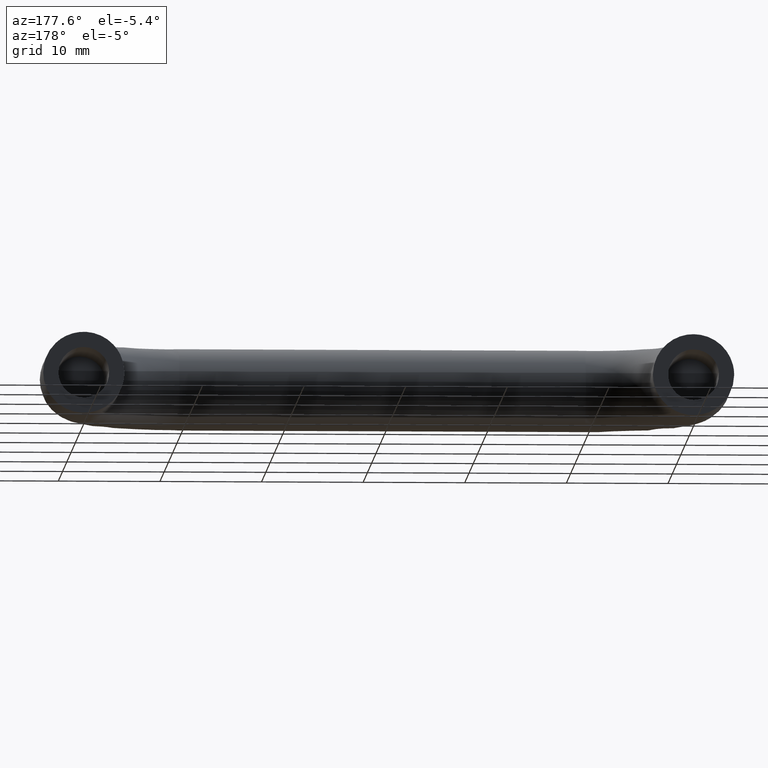
[diagram: clean part render]
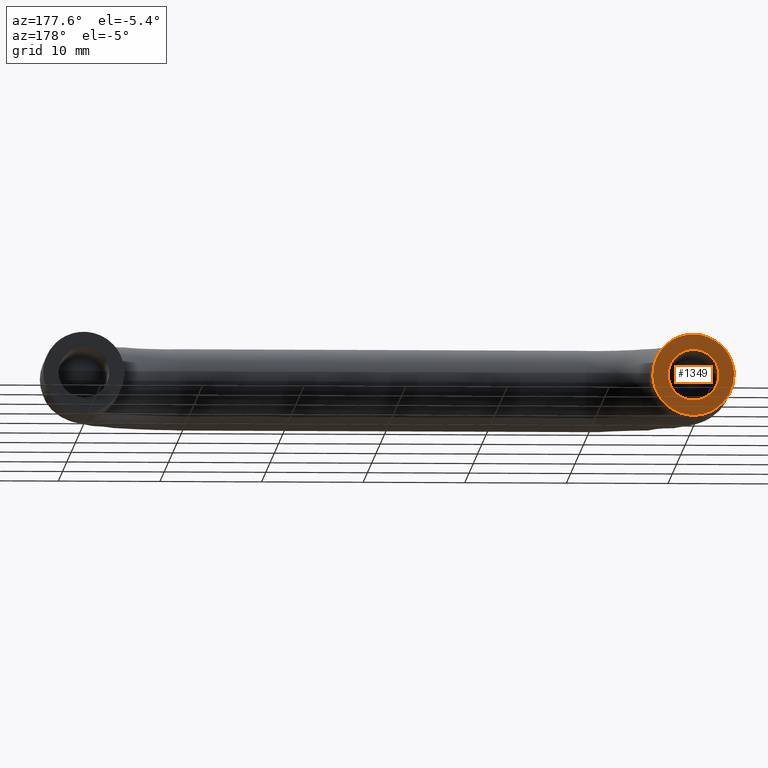
[diagram: same view with one face highlighted and labeled with its STEP entity id]
A machine part, auxiliary view. The second image highlights one B-rep face of the part: STEP entity #1349.
In plain terms, the highlighted face is a freeform B-spline surface patch.
Its self-contained STEP definition (entity closure, byte-faithful):
#79=CARTESIAN_POINT('',(-2.492293334326893,-2.775558E-017,0.196147739394916));
#80=VERTEX_POINT('',#79);
#86=CARTESIAN_POINT('',(0.0,0.0,2.500000000000000));
#87=VERTEX_POINT('',#86);
#88=CARTESIAN_POINT('',(0.0,0.0,2.500000000000000));
#89=CARTESIAN_POINT('',(-2.310976229005435,0.0,2.500000000000000));
#90=CARTESIAN_POINT('',(-2.492293334326893,-2.775558E-017,0.196147739394916));
#98=(BOUNDED_CURVE()B_SPLINE_CURVE(2,(#88,#89,#90),.UNSPECIFIED.,.F.,.U.)B_SPLINE_CURVE_WITH_KNOTS((3,3),(0.0,0.236331300622408),.UNSPECIFIED.)CURVE()GEOMETRIC_REPRESENTATION_ITEM()RATIONAL_B_SPLINE_CURVE((1.0,0.723120658617333,0.969723356150197))REPRESENTATION_ITEM(''));
#99=EDGE_CURVE('',#87,#80,#98,.T.);
#101=CARTESIAN_POINT('',(2.492293334326893,-2.775558E-017,-0.196147739394915));
#102=VERTEX_POINT('',#101);
#103=CARTESIAN_POINT('',(2.492293334326894,-2.775558E-017,-0.196147739394915));
#104=CARTESIAN_POINT('',(2.500000000000001,0.0,-0.098225267594826));
#105=CARTESIAN_POINT('',(2.500000000000000,0.0,0.0));
#106=CARTESIAN_POINT('',(2.500000000000000,0.0,2.500000000000000));
#107=CARTESIAN_POINT('',(0.0,0.0,2.500000000000000));
#115=(BOUNDED_CURVE()B_SPLINE_CURVE(2,(#103,#104,#105,#106,#107),.UNSPECIFIED.,.F.,.U.)B_SPLINE_CURVE_WITH_KNOTS((3,2,3),(0.736331300622408,0.750000000000000,1.0),.UNSPECIFIED.)CURVE()GEOMETRIC_REPRESENTATION_ITEM()RATIONAL_B_SPLINE_CURVE((0.969723356150197,0.983986122569215,1.0,0.707106781186548,1.0))REPRESENTATION_ITEM(''));
#116=EDGE_CURVE('',#102,#87,#115,.T.);
#192=CARTESIAN_POINT('',(0.0,0.0,-2.500000000000000));
#193=VERTEX_POINT('',#192);
#194=CARTESIAN_POINT('',(0.0,0.0,-2.500000000000000));
#195=CARTESIAN_POINT('',(2.310976229005433,0.0,-2.500000000000000));
#196=CARTESIAN_POINT('',(2.492293334326893,-2.775558E-017,-0.196147739394915));
#204=(BOUNDED_CURVE()B_SPLINE_CURVE(2,(#194,#195,#196),.UNSPECIFIED.,.F.,.U.)B_SPLINE_CURVE_WITH_KNOTS((3,3),(0.500000000000000,0.736331300622408),.UNSPECIFIED.)CURVE()GEOMETRIC_REPRESENTATION_ITEM()RATIONAL_B_SPLINE_CURVE((1.0,0.723120658617333,0.969723356150197))REPRESENTATION_ITEM(''));
#205=EDGE_CURVE('',#193,#102,#204,.T.);
#207=CARTESIAN_POINT('',(-2.492293334326893,-2.775558E-017,0.196147739394916));
#208=CARTESIAN_POINT('',(-2.499999999999999,0.0,0.098225267594826));
#209=CARTESIAN_POINT('',(-2.500000000000000,0.0,0.0));
#210=CARTESIAN_POINT('',(-2.500000000000000,0.0,-2.500000000000000));
#211=CARTESIAN_POINT('',(0.0,0.0,-2.500000000000000));
#219=(BOUNDED_CURVE()B_SPLINE_CURVE(2,(#207,#208,#209,#210,#211),.UNSPECIFIED.,.F.,.U.)B_SPLINE_CURVE_WITH_KNOTS((3,2,3),(0.236331300622408,0.250000000000000,0.500000000000000),.UNSPECIFIED.)CURVE()GEOMETRIC_REPRESENTATION_ITEM()RATIONAL_B_SPLINE_CURVE((0.969723356150197,0.983986122569215,1.0,0.707106781186548,1.0))REPRESENTATION_ITEM(''));
#220=EDGE_CURVE('',#80,#193,#219,.T.);
#903=CARTESIAN_POINT('',(2.635878257225859,1.987600E-016,3.008678416362234));
#904=VERTEX_POINT('',#903);
#910=CARTESIAN_POINT('',(-4.0,0.0,0.0));
#911=VERTEX_POINT('',#910);
#912=CARTESIAN_POINT('',(2.635878257225860,1.987600E-016,3.008678416362234));
#913=CARTESIAN_POINT('',(1.504351068131682,0.0,4.000000000000001));
#914=CARTESIAN_POINT('',(0.0,0.0,4.0));
#915=CARTESIAN_POINT('',(-4.000000000000000,0.0,4.000000000000000));
#916=CARTESIAN_POINT('',(-4.0,0.0,0.0));
#924=(BOUNDED_CURVE()B_SPLINE_CURVE(2,(#912,#913,#914,#915,#916),.UNSPECIFIED.,.F.,.U.)B_SPLINE_CURVE_WITH_KNOTS((3,2,3),(0.634954723230578,0.750000000000000,1.0),.UNSPECIFIED.)CURVE()GEOMETRIC_REPRESENTATION_ITEM()RATIONAL_B_SPLINE_CURVE((0.854482180901550,0.865216074310877,1.0,0.707106781186548,1.0))REPRESENTATION_ITEM(''));
#925=EDGE_CURVE('',#904,#911,#924,.T.);
#927=CARTESIAN_POINT('',(-2.803636857988532,-1.249001E-016,-2.853001992380676));
#928=VERTEX_POINT('',#927);
#929=CARTESIAN_POINT('',(-4.0,0.0,0.0));
#930=CARTESIAN_POINT('',(-4.0,0.0,-1.677339535446148));
#931=CARTESIAN_POINT('',(-2.803636857988533,-1.249001E-016,-2.853001992380677));
#939=(BOUNDED_CURVE()B_SPLINE_CURVE(2,(#929,#930,#931),.UNSPECIFIED.,.F.,.U.)B_SPLINE_CURVE_WITH_KNOTS((3,3),(0.0,0.126316778663051),.UNSPECIFIED.)CURVE()GEOMETRIC_REPRESENTATION_ITEM()RATIONAL_B_SPLINE_CURVE((1.0,0.852010688428930,0.853569641771621))REPRESENTATION_ITEM(''));
#940=EDGE_CURVE('',#911,#928,#939,.T.);
#1048=CARTESIAN_POINT('',(4.0,0.0,0.0));
#1049=VERTEX_POINT('',#1048);
#1050=CARTESIAN_POINT('',(-2.803636857988532,-1.249001E-016,-2.853001992380677));
#1051=CARTESIAN_POINT('',(-1.636442879663937,0.0,-4.0));
#1052=CARTESIAN_POINT('',(0.0,0.0,-4.0));
#1053=CARTESIAN_POINT('',(4.000000000000000,0.0,-4.000000000000000));
#1054=CARTESIAN_POINT('',(4.0,0.0,0.0));
#1062=(BOUNDED_CURVE()B_SPLINE_CURVE(2,(#1050,#1051,#1052,#1053,#1054),.UNSPECIFIED.,.F.,.U.)B_SPLINE_CURVE_WITH_KNOTS((3,2,3),(0.126316778663051,0.250000000000000,0.500000000000000),.UNSPECIFIED.)CURVE()GEOMETRIC_REPRESENTATION_ITEM()RATIONAL_B_SPLINE_CURVE((0.853569641771621,0.855096092757617,1.0,0.707106781186548,1.0))REPRESENTATION_ITEM(''));
#1063=EDGE_CURVE('',#928,#1049,#1062,.T.);
#1065=CARTESIAN_POINT('',(4.0,0.0,0.0));
#1066=CARTESIAN_POINT('',(4.0,0.0,1.813582673763154));
#1067=CARTESIAN_POINT('',(2.635878257225859,1.987600E-016,3.008678416362234));
#1075=(BOUNDED_CURVE()B_SPLINE_CURVE(2,(#1065,#1066,#1067),.UNSPECIFIED.,.F.,.U.)B_SPLINE_CURVE_WITH_KNOTS((3,3),(0.500000000000000,0.634954723230578),.UNSPECIFIED.)CURVE()GEOMETRIC_REPRESENTATION_ITEM()RATIONAL_B_SPLINE_CURVE((1.0,0.841890706875669,0.854482180901550))REPRESENTATION_ITEM(''));
#1076=EDGE_CURVE('',#1049,#904,#1075,.T.);
#1332=CARTESIAN_POINT('',(4.399599984494448,0.0,-4.399424500930244));
#1333=CARTESIAN_POINT('',(-4.399600199071169,0.0,-4.399424500930244));
#1334=CARTESIAN_POINT('',(4.399599984494448,0.0,4.397396750914985));
#1335=CARTESIAN_POINT('',(-4.399600199071169,0.0,4.397396750914985));
#1336=B_SPLINE_SURFACE_WITH_KNOTS('',1,1,((#1332,#1334),(#1333,#1335)),.UNSPECIFIED.,.F.,.F.,.U.,(2,2),(2,2),(0.0,8.799200183565617),(0.0,8.796821251845229),.UNSPECIFIED.);
#1337=ORIENTED_EDGE('',*,*,#925,.F.);
#1338=ORIENTED_EDGE('',*,*,#1076,.F.);
#1339=ORIENTED_EDGE('',*,*,#1063,.F.);
#1340=ORIENTED_EDGE('',*,*,#940,.F.);
#1341=EDGE_LOOP('',(#1337,#1338,#1339,#1340));
#1342=FACE_OUTER_BOUND('',#1341,.T.);
#1343=ORIENTED_EDGE('',*,*,#205,.T.);
#1344=ORIENTED_EDGE('',*,*,#116,.T.);
#1345=ORIENTED_EDGE('',*,*,#99,.T.);
#1346=ORIENTED_EDGE('',*,*,#220,.T.);
#1347=EDGE_LOOP('',(#1343,#1344,#1345,#1346));
#1348=FACE_BOUND('',#1347,.T.);
#1349=ADVANCED_FACE('',(#1342,#1348),#1336,.T.);